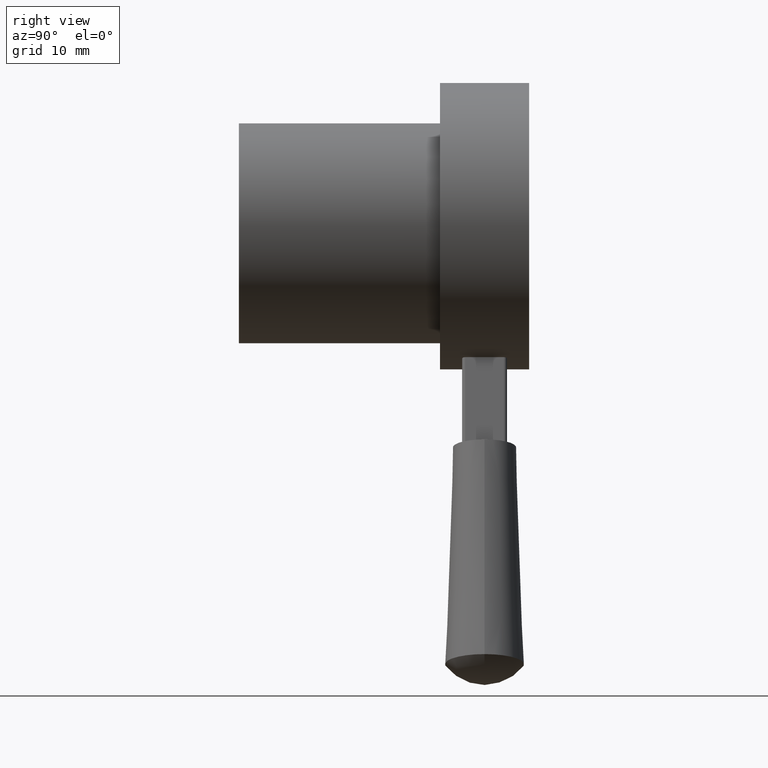
[diagram: clean part render]
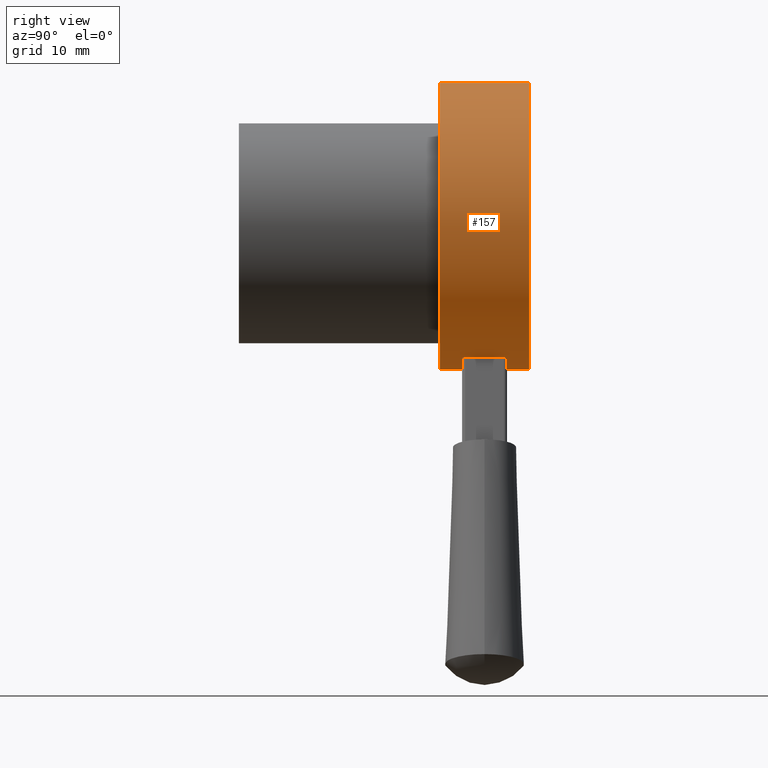
[diagram: same view with one face highlighted and labeled with its STEP entity id]
A machine part, right view. The second image highlights one B-rep face of the part: STEP entity #157.
In plain terms, the highlighted cylindrical surface (partial cylindrical patch) has radius 21.71 mm, axis along (0, 1, 0).
Its self-contained STEP definition (entity closure, byte-faithful):
#64 = EDGE_CURVE ( 'NONE', #145, #66, #714, .T. ) ;
#65 = ORIENTED_EDGE ( 'NONE', *, *, #172, .T. ) ;
#66 = VERTEX_POINT ( 'NONE', #709 ) ;
#145 = VERTEX_POINT ( 'NONE', #613 ) ;
#146 = ORIENTED_EDGE ( 'NONE', *, *, #169, .F. ) ;
#147 = ORIENTED_EDGE ( 'NONE', *, *, #148, .T. ) ;
#148 = EDGE_CURVE ( 'NONE', #168, #159, #612, .T. ) ;
#157 = ADVANCED_FACE ( 'NONE', ( #590 ), #591, .T. ) ;
#158 = EDGE_LOOP ( 'NONE', ( #147, #65, #173, #146 ) ) ;
#159 = VERTEX_POINT ( 'NONE', #739 ) ;
#168 = VERTEX_POINT ( 'NONE', #723 ) ;
#169 = EDGE_CURVE ( 'NONE', #168, #145, #721, .T. ) ;
#172 = EDGE_CURVE ( 'NONE', #159, #66, #1034, .T. ) ;
#173 = ORIENTED_EDGE ( 'NONE', *, *, #64, .F. ) ;
#312 = DIRECTION ( 'NONE',  ( 0.0000000000000000000, 1.000000000000000000, 0.0000000000000000000 ) ) ;
#590 = FACE_OUTER_BOUND ( 'NONE', #158, .T. ) ;
#591 = CYLINDRICAL_SURFACE ( 'NONE', #742, 21.71000000000000100 ) ;
#596 = CARTESIAN_POINT ( 'NONE',  ( 0.0000000000000000000, 30.49899999999999900, 0.0000000000000000000 ) ) ;
#608 = DIRECTION ( 'NONE',  ( 0.0000000000000000000, 0.0000000000000000000, 1.000000000000000000 ) ) ;
#609 = DIRECTION ( 'NONE',  ( 0.0000000000000000000, 1.000000000000000000, 0.0000000000000000000 ) ) ;
#610 = CARTESIAN_POINT ( 'NONE',  ( 0.0000000000000000000, 30.49899999999999900, 0.0000000000000000000 ) ) ;
#611 = AXIS2_PLACEMENT_3D ( 'NONE', #610, #609, #608 ) ;
#612 = CIRCLE ( 'NONE', #611, 21.71000000000000100 ) ;
#613 = CARTESIAN_POINT ( 'NONE',  ( 0.0000000000000000000, 43.99899999999999500, 21.71000000000000100 ) ) ;
#709 = CARTESIAN_POINT ( 'NONE',  ( 2.658708200948903900E-015, 43.99899999999999500, -21.71000000000000100 ) ) ;
#710 = DIRECTION ( 'NONE',  ( 0.0000000000000000000, 0.0000000000000000000, 1.000000000000000000 ) ) ;
#711 = DIRECTION ( 'NONE',  ( 0.0000000000000000000, 1.000000000000000000, 0.0000000000000000000 ) ) ;
#712 = CARTESIAN_POINT ( 'NONE',  ( 0.0000000000000000000, 43.99899999999999500, 0.0000000000000000000 ) ) ;
#713 = AXIS2_PLACEMENT_3D ( 'NONE', #712, #711, #710 ) ;
#714 = CIRCLE ( 'NONE', #713, 21.71000000000000100 ) ;
#719 = VECTOR ( 'NONE', #312, 1000.000000000000000 ) ;
#720 = CARTESIAN_POINT ( 'NONE',  ( 0.0000000000000000000, 30.49899999999999900, 21.71000000000000100 ) ) ;
#721 = LINE ( 'NONE', #720, #719 ) ;
#723 = CARTESIAN_POINT ( 'NONE',  ( 0.0000000000000000000, 30.49899999999999900, 21.71000000000000100 ) ) ;
#739 = CARTESIAN_POINT ( 'NONE',  ( 2.658708200948903900E-015, 30.49899999999999900, -21.71000000000000100 ) ) ;
#740 = DIRECTION ( 'NONE',  ( 0.0000000000000000000, 0.0000000000000000000, 1.000000000000000000 ) ) ;
#741 = DIRECTION ( 'NONE',  ( 0.0000000000000000000, 1.000000000000000000, 0.0000000000000000000 ) ) ;
#742 = AXIS2_PLACEMENT_3D ( 'NONE', #596, #741, #740 ) ;
#1027 = DIRECTION ( 'NONE',  ( 0.0000000000000000000, 1.000000000000000000, 0.0000000000000000000 ) ) ;
#1028 = VECTOR ( 'NONE', #1027, 1000.000000000000000 ) ;
#1029 = CARTESIAN_POINT ( 'NONE',  ( 2.658708200948903900E-015, 30.49899999999999900, -21.71000000000000100 ) ) ;
#1034 = LINE ( 'NONE', #1029, #1028 ) ;